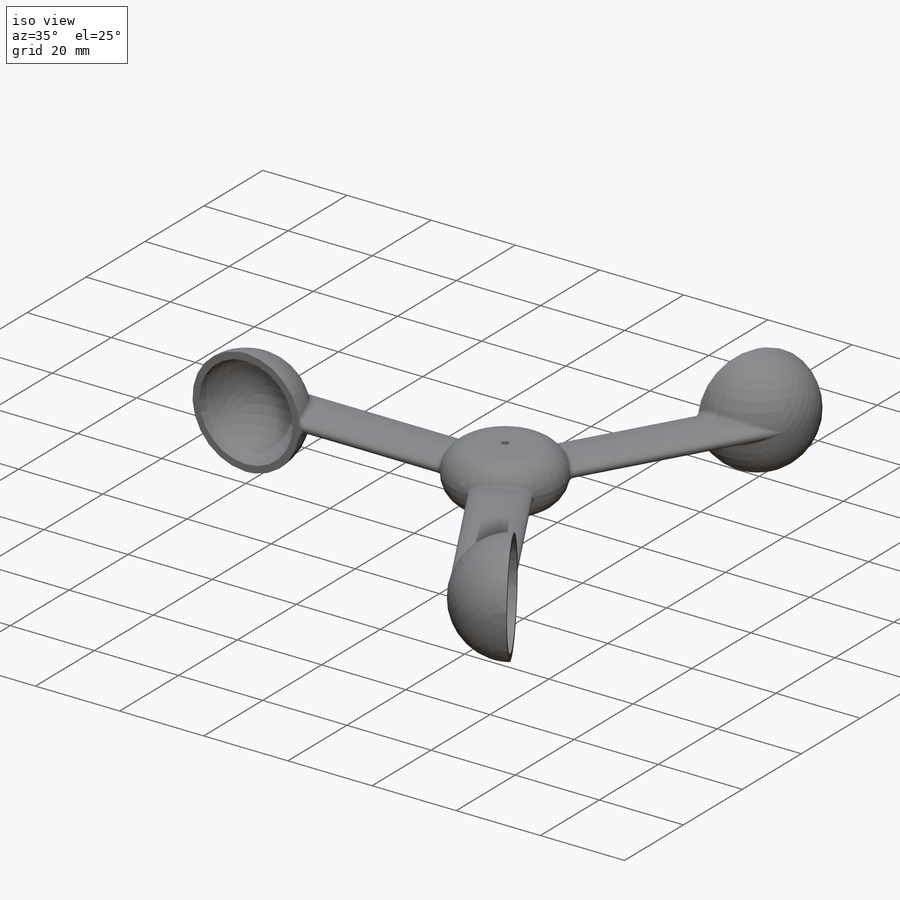
[diagram: iso view]
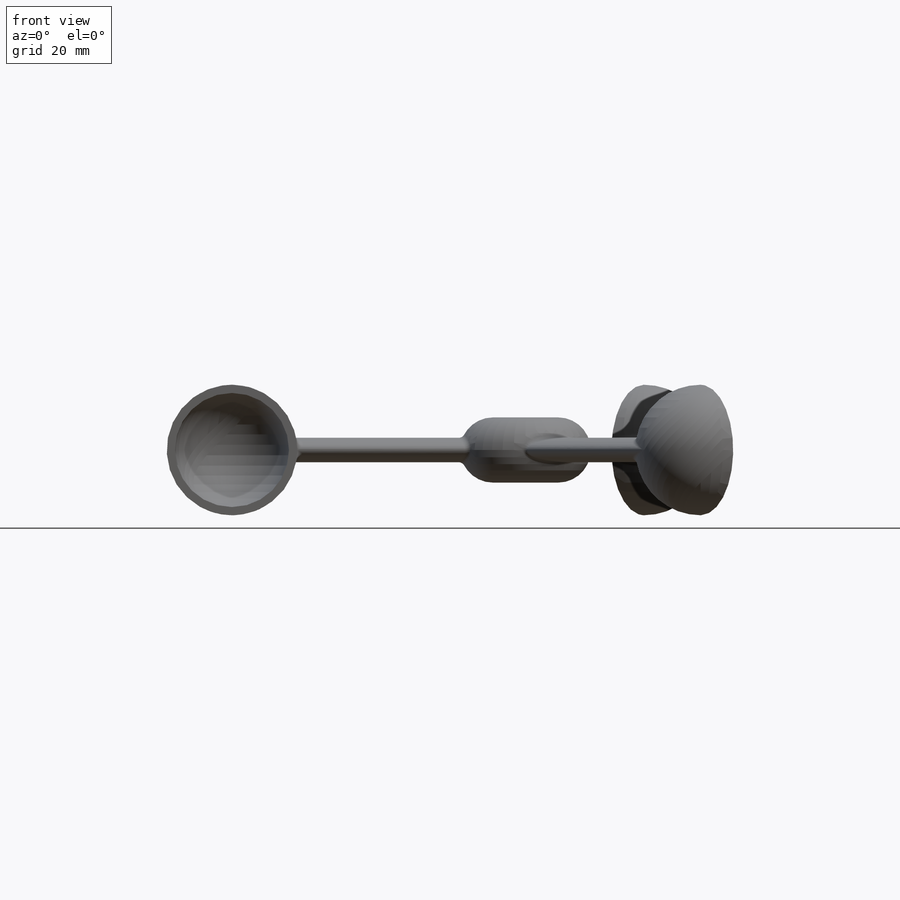
[diagram: front view]
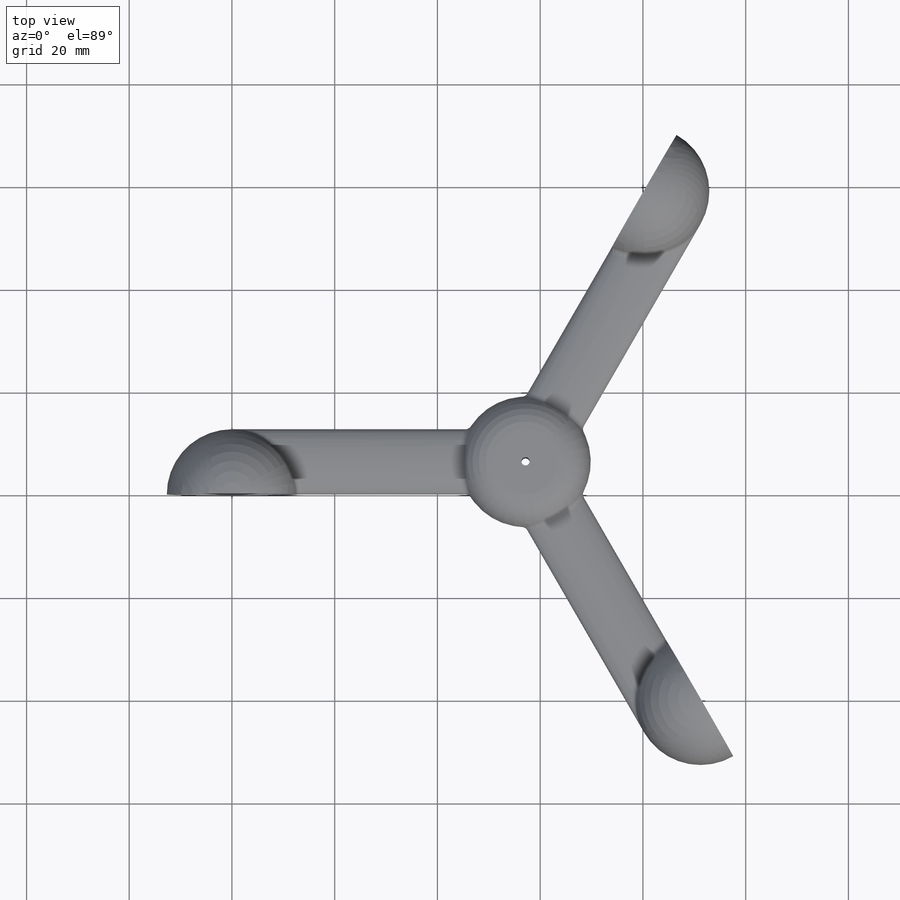
[diagram: top view]
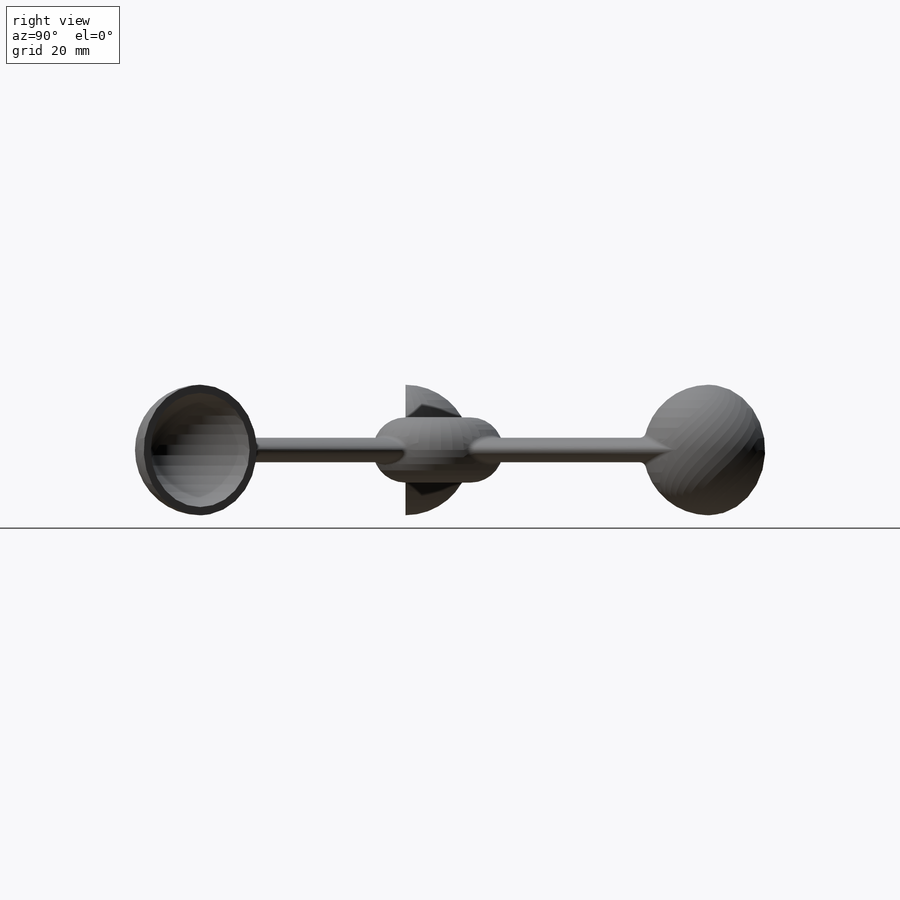
[diagram: right view]
SOLIDWORKS PART (.sldprt)
format: sldprt  version: not decoded by parser v0  size: 433,664 bytes
history: native  units: mm
features: sketch x4, fillet x4, extrude x2, material x1, revolve x1, shell x1, pattern_circular x1, cut_extrude x1 (+11 scaffold rows collapsed)
feature tree (26):
  scaffold x11  (default folders/planes/origin — collapsed)
  material  "Material <not specified>"
  sketch  "Sketch1"  dims[D1=12.7mm]
  revolve  "Revolve1"  Angle=180deg
  shell  "Shell1"  Thickness=1.5875mm
  sketch  "Sketch2"  dims[D1=4.7625mm]
  extrude  "Boss-Extrude1"  Depth=50.8mm
  sketch  "Sketch3"  dims[D1=25.4mm D2=6.35mm]
  extrude  "Boss-Extrude2"  Depth=12.7mm
  pattern_circular  "CirPattern1"  Count=3 Angle=360deg
  fillet  "Fillet1"  Radius=6.35mm
  fillet  "Fillet2"  Radius=6.35mm
  fillet  "Fillet3"  Radius=1.27mm
  fillet  "Fillet4"  Radius=1.27mm
  sketch  "Sketch4"  dims[D1=1.5875mm]
  cut_extrude  "Cut-Extrude1"  [1 undecoded]
decode coverage: 13 of 14 modeling features carry decoded parameters
note: 1 parameter value undecoded
note: suppression state not decoded; provenance and decode notes live in map.json
